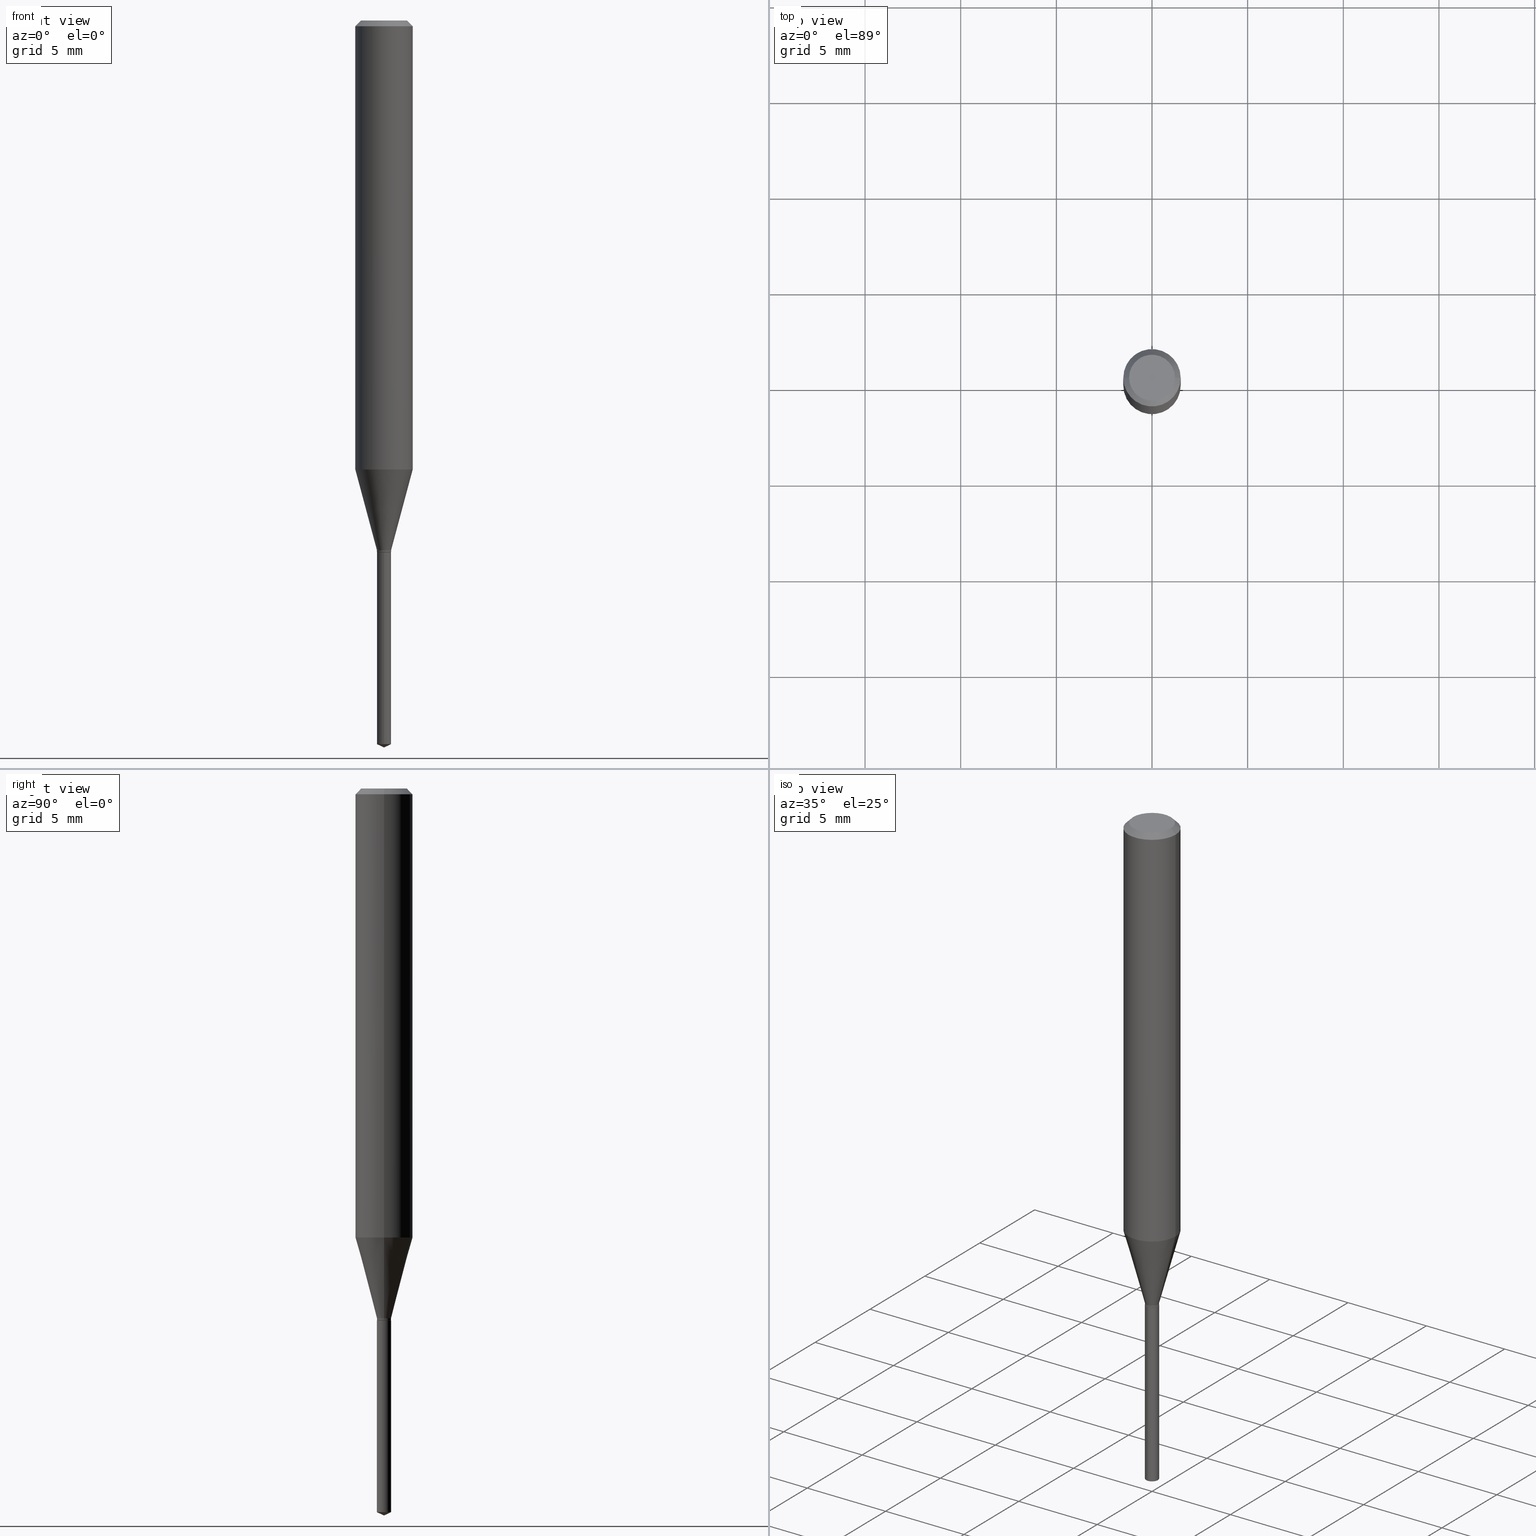
[diagram: canonical four-view strip — front | top / right | iso, engineering-drawing reading convention]
A machine part, canonical four-view strip (front | top / right | iso — engineering-drawing reading convention). The complete STEP part file that produces these views, byte-faithful:
ISO-10303-21;
HEADER;
FILE_DESCRIPTION (( 'STEP AP203' ),
    '1' );
FILE_NAME ('07793.STEP',
    '2024-04-24T03:09:29',
    ( '' ),
    ( '' ),
    'SwSTEP 2.0',
    'SolidWorks 2023',
    '' );
FILE_SCHEMA (( 'CONFIG_CONTROL_DESIGN' ));
ENDSEC;

DATA;
#1 = ADVANCED_FACE ( 'NONE', ( #323 ), #472, .F. ) ;
#2 = DIRECTION ( 'NONE',  ( -1.000000000000000000, 6.982962677686266711E-15, 0.000000000000000000 ) ) ;
#3 = CIRCLE ( 'NONE', #393, 0.01455000000000000043 ) ;
#4 = DIRECTION ( 'NONE',  ( 6.982962677686265922E-15, 1.000000000000000000, -3.491495526022433599E-15 ) ) ;
#5 = ORIENTED_EDGE ( 'NONE', *, *, #409, .T. ) ;
#6 = VERTEX_POINT ( 'NONE', #464 ) ;
#7 = EDGE_CURVE ( 'NONE', #430, #453, #425, .T. ) ;
#8 = CARTESIAN_POINT ( 'NONE',  ( 2.676565608369632355E-29, -3.821426325363822773E-15, -1.094500000000000028 ) ) ;
#9 = DIRECTION ( 'NONE',  ( 1.000000000000000000, -6.982962677686266711E-15, 4.876176775795935793E-29 ) ) ;
#10 = VECTOR ( 'NONE', #490, 39.37007874015748143 ) ;
#11 = ORIENTED_EDGE ( 'NONE', *, *, #477, .T. ) ;
#12 = EDGE_LOOP ( 'NONE', ( #406, #11, #112 ) ) ;
#13 = DIRECTION ( 'NONE',  ( 1.000000000000000000, -6.982962677686266711E-15, 4.876185090822587894E-29 ) ) ;
#14 = ORIENTED_EDGE ( 'NONE', *, *, #7, .F. ) ;
#15 = EDGE_CURVE ( 'NONE', #389, #305, #332, .T. ) ;
#16 = ORIENTED_EDGE ( 'NONE', *, *, #342, .F. ) ;
#17 = DIRECTION ( 'NONE',  ( -6.982962677686266711E-15, -1.000000000000000000, 0.000000000000000000 ) ) ;
#18 = CONICAL_SURFACE ( 'NONE', #249, 84.42940631927417883, 1.134464013796315118 ) ;
#19 = MECHANICAL_CONTEXT ( 'NONE', #63, 'mechanical' ) ;
#20 = ORIENTED_EDGE ( 'NONE', *, *, #282, .T. ) ;
#21 = ORIENTED_EDGE ( 'NONE', *, *, #226, .T. ) ;
#22 = CARTESIAN_POINT ( 'NONE',  ( 3.658672935554494692E-29, -5.223595400746700193E-15, -1.496099999999999985 ) ) ;
#23 = PRODUCT_DEFINITION_SHAPE ( 'NONE', 'NONE',  #172 ) ;
#24 = APPLICATION_PROTOCOL_DEFINITION ( 'international standard', 'config_control_design', 1994, #439 ) ;
#25 = EDGE_CURVE ( 'NONE', #367, #48, #450, .T. ) ;
#26 = DATE_TIME_ROLE ( 'creation_date' ) ;
#27 = EDGE_LOOP ( 'NONE', ( #43, #419, #128, #271 ) ) ;
#28 = DIRECTION ( 'NONE',  ( 1.000000000000000000, -6.982962677686268288E-15, 0.000000000000000000 ) ) ;
#29 = COORDINATED_UNIVERSAL_TIME_OFFSET ( 5, 0, .BEHIND. ) ;
#30 = ADVANCED_FACE ( 'NONE', ( #34 ), #460, .T. ) ;
#31 = APPROVAL_DATE_TIME ( #366, #85 ) ;
#32 = CIRCLE ( 'NONE', #413, 0.04724000000000000421 ) ;
#33 = DIRECTION ( 'NONE',  ( 1.000000000000000000, -6.982962677686255667E-15, 0.000000000000000000 ) ) ;
#34 = FACE_OUTER_BOUND ( 'NONE', #412, .T. ) ;
#35 = EDGE_CURVE ( 'NONE', #150, #178, #198, .T. ) ;
#36 = LINE ( 'NONE', #384, #155 ) ;
#37 = FACE_OUTER_BOUND ( 'NONE', #426, .T. ) ;
#38 = AXIS2_PLACEMENT_3D ( 'NONE', #119, #284, #17 ) ;
#39 = CARTESIAN_POINT ( 'NONE',  ( 0.000000000000000000, 0.000000000000000000, 0.000000000000000000 ) ) ;
#40 = CLOSED_SHELL ( 'NONE', ( #100, #233, #140, #103, #318, #219, #122, #484, #30, #1, #289, #153 ) ) ;
#41 = LOCAL_TIME ( 23, 9, 29.00000000000000000, #475 ) ;
#42 = ORIENTED_EDGE ( 'NONE', *, *, #376, .T. ) ;
#43 = ORIENTED_EDGE ( 'NONE', *, *, #72, .T. ) ;
#44 = ORIENTED_EDGE ( 'NONE', *, *, #310, .T. ) ;
#45 = ORIENTED_EDGE ( 'NONE', *, *, #324, .F. ) ;
#46 = FACE_OUTER_BOUND ( 'NONE', #435, .T. ) ;
#47 = CALENDAR_DATE ( 2024, 23, 4 ) ;
#48 = VERTEX_POINT ( 'NONE', #58 ) ;
#49 = EDGE_LOOP ( 'NONE', ( #396, #165, #360, #81 ) ) ;
#50 = CIRCLE ( 'NONE', #487, 0.01455000000000000043 ) ;
#51 = APPROVAL_PERSON_ORGANIZATION ( #131, #85, #159 ) ;
#52 = DIRECTION ( 'NONE',  ( 6.439704144417027198E-15, 0.9063077870366517130, 0.4226182617406953890 ) ) ;
#53 = DIRECTION ( 'NONE',  ( -2.445468806185136597E-29, 3.491481338843145583E-15, 1.000000000000000000 ) ) ;
#54 = CC_DESIGN_PERSON_AND_ORGANIZATION_ASSIGNMENT ( #202, #479, ( #149 ) ) ;
#55 = DATE_AND_TIME ( #252, #41 ) ;
#56 = DIRECTION ( 'NONE',  ( -6.982962677686266711E-15, -1.000000000000000000, 0.000000000000000000 ) ) ;
#57 = EDGE_LOOP ( 'NONE', ( #44, #465 ) ) ;
#58 = CARTESIAN_POINT ( 'NONE',  ( 0.05904999999999999832, -4.535783407291118600E-16, -0.01181000000000007218 ) ) ;
#59 = DATE_TIME_ROLE ( 'classification_date' ) ;
#60 = AXIS2_PLACEMENT_3D ( 'NONE', #77, #237, #139 ) ;
#61 = CYLINDRICAL_SURFACE ( 'NONE', #314, 0.01455000000000000043 ) ;
#62 = UNCERTAINTY_MEASURE_WITH_UNIT (LENGTH_MEASURE( 1.000000000000000082E-05 ), #469, 'distance_accuracy_value', 'NONE');
#63 = APPLICATION_CONTEXT ( 'configuration controlled 3d designs of mechanical parts and assemblies' ) ;
#64 = CARTESIAN_POINT ( 'NONE',  ( 2.676565608369631794E-29, -3.821426325363822773E-15, -1.094499999999999806 ) ) ;
#65 = CARTESIAN_POINT ( 'NONE',  ( 0.01455000000000000043, -3.921282691654735933E-15, -1.093999999999999861 ) ) ;
#66 = DIRECTION ( 'NONE',  ( -6.982962677686266711E-15, -1.000000000000000000, 0.000000000000000000 ) ) ;
#67 = DIRECTION ( 'NONE',  ( 0.7071067811865453523, -7.319954787623248157E-15, -0.7071067811865496822 ) ) ;
#68 = APPROVAL_DATE_TIME ( #368, #461 ) ;
#69 = CC_DESIGN_PERSON_AND_ORGANIZATION_ASSIGNMENT ( #441, #369, ( #172 ) ) ;
#70 = CARTESIAN_POINT ( 'NONE',  ( 2.888098660104664204E-31, -4.123439461173780263E-17, -0.01181000000000007218 ) ) ;
#71 = ORIENTED_EDGE ( 'NONE', *, *, #282, .F. ) ;
#72 = EDGE_CURVE ( 'NONE', #397, #178, #372, .T. ) ;
#73 = CIRCLE ( 'NONE', #118, 0.01405000000000000172 ) ;
#74 = CONICAL_SURFACE ( 'NONE', #379, 84.42940631927417883, 1.134464013796315118 ) ;
#75 = ORIENTED_EDGE ( 'NONE', *, *, #72, .F. ) ;
#76 = EDGE_LOOP ( 'NONE', ( #321, #325, #481, #470 ) ) ;
#77 = CARTESIAN_POINT ( 'NONE',  ( 3.642070010449566093E-29, -5.199921912077447787E-15, -1.489315223573844715 ) ) ;
#78 = EDGE_CURVE ( 'NONE', #48, #186, #125, .T. ) ;
#79 = LINE ( 'NONE', #431, #88 ) ;
#80 = ORIENTED_EDGE ( 'NONE', *, *, #251, .T. ) ;
#81 = ORIENTED_EDGE ( 'NONE', *, *, #15, .F. ) ;
#82 = DIRECTION ( 'NONE',  ( 1.000000000000000000, -6.982962677686253300E-15, 0.000000000000000000 ) ) ;
#83 = CARTESIAN_POINT ( 'NONE',  ( -9.261924752013118283E-28, 1.322368428517963298E-13, 37.87397874015748300 ) ) ;
#84 = DIRECTION ( 'NONE',  ( 1.000000000000000000, -6.982962677686266711E-15, 4.876176775795935793E-29 ) ) ;
#85 = APPROVAL ( #242, 'UNSPECIFIED' ) ;
#86 = APPROVAL_ROLE ( '' ) ;
#87 = PRODUCT ( '07793', '07793', '', ( #19 ) ) ;
#88 = VECTOR ( 'NONE', #291, 39.37007874015748143 ) ;
#89 = EDGE_LOOP ( 'NONE', ( #16, #231, #145, #361 ) ) ;
#90 = AXIS2_PLACEMENT_3D ( 'NONE', #210, #485, #299 ) ;
#91 = CARTESIAN_POINT ( 'NONE',  ( 1.033839680531310403E-16, 0.01454999999999480494, -1.489315223573844715 ) ) ;
#92 = PLANE ( 'NONE',  #319 ) ;
#93 = DIRECTION ( 'NONE',  ( 1.000000000000000000, -6.982962677686255667E-15, 0.000000000000000000 ) ) ;
#94 = DATE_AND_TIME ( #432, #447 ) ;
#95 = DIRECTION ( 'NONE',  ( 2.438088387897960049E-29, -3.491481338843145188E-15, -1.000000000000000000 ) ) ;
#96 = MANIFOLD_SOLID_BREP ( 'Body-Move/Copy2[1]', #352 ) ;
#97 = ORIENTED_EDGE ( 'NONE', *, *, #35, .T. ) ;
#98 = CARTESIAN_POINT ( 'NONE',  ( -0.01455000000000000043, -3.709488228030561988E-15, -1.093999999999999861 ) ) ;
#99 = SECURITY_CLASSIFICATION_LEVEL ( 'unclassified' ) ;
#100 = ADVANCED_FACE ( 'NONE', ( #220 ), #106, .T. ) ;
#101 = FACE_OUTER_BOUND ( 'NONE', #358, .T. ) ;
#102 = DIRECTION ( 'NONE',  ( -0.7071067811864253372, 7.493145998869912398E-15, 0.7071067811866698083 ) ) ;
#103 = ADVANCED_FACE ( 'NONE', ( #227 ), #127, .T. ) ;
#104 = CARTESIAN_POINT ( 'NONE',  ( 0.000000000000000000, 0.000000000000000000, 0.000000000000000000 ) ) ;
#105 = DIRECTION ( 'NONE',  ( 1.000000000000000000, -6.982962677686266711E-15, 0.000000000000000000 ) ) ;
#106 = CONICAL_SURFACE ( 'NONE', #143, 0.01405000000000000172, 0.7853981633972754173 ) ;
#107 = DIRECTION ( 'NONE',  ( -2.445468806185136597E-29, 3.491481338843145583E-15, 1.000000000000000000 ) ) ;
#108 = EDGE_CURVE ( 'NONE', #285, #389, #3, .T. ) ;
#109 = VECTOR ( 'NONE', #416, 39.37007874015748854 ) ;
#110 = CC_DESIGN_APPROVAL ( #461, ( #215 ) ) ;
#111 = CARTESIAN_POINT ( 'NONE',  ( 8.265746106709734507E-48, -1.180129479067563789E-33, -3.380025165646692144E-19 ) ) ;
#112 = ORIENTED_EDGE ( 'NONE', *, *, #257, .F. ) ;
#113 = CARTESIAN_POINT ( 'NONE',  ( -0.05905000000000010241, -2.806636156120838510E-15, -0.9240237390631849124 ) ) ;
#114 = DIRECTION ( 'NONE',  ( -2.445468806185136597E-29, 3.491481338843145583E-15, 1.000000000000000000 ) ) ;
#115 = CC_DESIGN_PERSON_AND_ORGANIZATION_ASSIGNMENT ( #400, #292, ( #149 ) ) ;
#116 = CARTESIAN_POINT ( 'NONE',  ( -1.016021069603084089E-16, -0.01455000000000382203, -1.094499999999999806 ) ) ;
#117 = ORIENTED_EDGE ( 'NONE', *, *, #108, .T. ) ;
#118 = AXIS2_PLACEMENT_3D ( 'NONE', #8, #458, #82 ) ;
#119 = CARTESIAN_POINT ( 'NONE',  ( 2.676565608369631794E-29, -3.821426325363822773E-15, -1.094499999999999806 ) ) ;
#120 = DIRECTION ( 'NONE',  ( -6.982962677686266711E-15, -1.000000000000000000, 3.520397390770460575E-15 ) ) ;
#121 = CARTESIAN_POINT ( 'NONE',  ( 0.000000000000000000, 0.000000000000000000, 0.000000000000000000 ) ) ;
#122 = ADVANCED_FACE ( 'NONE', ( #245 ), #364, .T. ) ;
#123 =( LENGTH_UNIT ( ) NAMED_UNIT ( * ) SI_UNIT ( $, .METRE. ) );
#124 = ORIENTED_EDGE ( 'NONE', *, *, #454, .T. ) ;
#125 = CIRCLE ( 'NONE', #162, 0.05904999999999999832 ) ;
#126 = VERTEX_POINT ( 'NONE', #320 ) ;
#127 = CONICAL_SURFACE ( 'NONE', #427, 0.01455000000000000043, 0.2617993877991499629 ) ;
#128 = ORIENTED_EDGE ( 'NONE', *, *, #411, .F. ) ;
#129 = LOCAL_TIME ( 23, 9, 29.00000000000000000, #157 ) ;
#130 = DIRECTION ( 'NONE',  ( -2.445468806185136597E-29, 3.491481338843145583E-15, 1.000000000000000000 ) ) ;
#131 = PERSON_AND_ORGANIZATION ( #218, #394 ) ;
#132 = ORIENTED_EDGE ( 'NONE', *, *, #78, .F. ) ;
#133 = DIRECTION ( 'NONE',  ( -2.438088387897960049E-29, 3.491481338843145188E-15, 1.000000000000000000 ) ) ;
#134 = CYLINDRICAL_SURFACE ( 'NONE', #38, 0.01455000000000000043 ) ;
#135 = LENGTH_MEASURE_WITH_UNIT ( LENGTH_MEASURE( 0.02539999999999999897 ), #123 );
#136 = DIRECTION ( 'NONE',  ( 1.000000000000000000, -6.982962677686266711E-15, 4.876176775795935793E-29 ) ) ;
#137 = CIRCLE ( 'NONE', #345, 0.01405000000000000172 ) ;
#138 = DIRECTION ( 'NONE',  ( -2.445458899330790108E-29, 3.491495526022433205E-15, 1.000000000000000000 ) ) ;
#139 = DIRECTION ( 'NONE',  ( -6.982962677686266711E-15, -1.000000000000000000, 0.000000000000000000 ) ) ;
#140 = ADVANCED_FACE ( 'NONE', ( #200 ), #488, .T. ) ;
#141 = LINE ( 'NONE', #156, #478 ) ;
#142 = DIRECTION ( 'NONE',  ( 1.000000000000000000, -6.982962677686253300E-15, 0.000000000000000000 ) ) ;
#143 = AXIS2_PLACEMENT_3D ( 'NONE', #147, #195, #363 ) ;
#144 = CARTESIAN_POINT ( 'NONE',  ( 2.259671230053572766E-29, -3.226211641587178003E-15, -0.9240237390631849124 ) ) ;
#145 = ORIENTED_EDGE ( 'NONE', *, *, #269, .T. ) ;
#146 = ORIENTED_EDGE ( 'NONE', *, *, #226, .F. ) ;
#147 = CARTESIAN_POINT ( 'NONE',  ( 2.676565608369632355E-29, -3.821426325363822773E-15, -1.094500000000000028 ) ) ;
#148 = AXIS2_PLACEMENT_3D ( 'NONE', #351, #234, #391 ) ;
#149 = PRODUCT_DEFINITION_FORMATION_WITH_SPECIFIED_SOURCE ( 'ANY', '', #87, .NOT_KNOWN. ) ;
#150 = VERTEX_POINT ( 'NONE', #392 ) ;
#151 = CC_DESIGN_DATE_AND_TIME_ASSIGNMENT ( #94, #26, ( #172 ) ) ;
#152 = ORIENTED_EDGE ( 'NONE', *, *, #365, .T. ) ;
#153 = ADVANCED_FACE ( 'NONE', ( #424 ), #256, .T. ) ;
#154 = CIRCLE ( 'NONE', #402, 0.05905000000000010241 ) ;
#155 = VECTOR ( 'NONE', #102, 39.37007874015748143 ) ;
#156 = CARTESIAN_POINT ( 'NONE',  ( 3.658651059288795076E-29, -5.223626456482161457E-15, -1.496099999999999985 ) ) ;
#157 = COORDINATED_UNIVERSAL_TIME_OFFSET ( 5, 0, .BEHIND. ) ;
#158 = EDGE_LOOP ( 'NONE', ( #20, #315, #132, #268 ) ) ;
#159 = APPROVAL_ROLE ( '' ) ;
#160 = DIRECTION ( 'NONE',  ( -2.445458899330790108E-29, 3.491495526022433205E-15, 1.000000000000000000 ) ) ;
#161 = APPROVAL_DATE_TIME ( #55, #209 ) ;
#162 = AXIS2_PLACEMENT_3D ( 'NONE', #443, #107, #105 ) ;
#163 = DIRECTION ( 'NONE',  ( 1.000000000000000000, -6.982962677686255667E-15, 0.000000000000000000 ) ) ;
#164 = CIRCLE ( 'NONE', #270, 0.01455000000000000043 ) ;
#165 = ORIENTED_EDGE ( 'NONE', *, *, #383, .T. ) ;
#166 = APPROVAL_PERSON_ORGANIZATION ( #444, #209, #471 ) ;
#167 = CARTESIAN_POINT ( 'NONE',  ( -4.753723245638138964E-29, -1.446202287008103114E-14, -1.094500000000000028 ) ) ;
#168 = EDGE_CURVE ( 'NONE', #126, #395, #73, .T. ) ;
#169 =( NAMED_UNIT ( * ) SI_UNIT ( $, .STERADIAN. ) SOLID_ANGLE_UNIT ( ) );
#170 = DIRECTION ( 'NONE',  ( 0.2588190451025212391, 1.565188264969622362E-15, 0.9659258262890679791 ) ) ;
#171 = PERSON_AND_ORGANIZATION_ROLE ( 'classification_officer' ) ;
#172 = PRODUCT_DEFINITION ( 'UNKNOWN', '', #149, #176 ) ;
#173 = AXIS2_PLACEMENT_3D ( 'NONE', #482, #250, #56 ) ;
#174 = AXIS2_PLACEMENT_3D ( 'NONE', #417, #183, #385 ) ;
#175 = SHAPE_DEFINITION_REPRESENTATION ( #23, #486 ) ;
#176 = DESIGN_CONTEXT ( 'detailed design', #439, 'design' ) ;
#177 = CARTESIAN_POINT ( 'NONE',  ( 2.676565608369631794E-29, -3.821426325363822773E-15, -1.094499999999999806 ) ) ;
#178 = VERTEX_POINT ( 'NONE', #91 ) ;
#179 = VECTOR ( 'NONE', #386, 39.37007874015748143 ) ;
#180 = VECTOR ( 'NONE', #204, 39.37007874015748143 ) ;
#181 = DIRECTION ( 'NONE',  ( -2.445468806185136597E-29, 3.491481338843145583E-15, 1.000000000000000000 ) ) ;
#182 = EDGE_CURVE ( 'NONE', #367, #356, #32, .T. ) ;
#183 = DIRECTION ( 'NONE',  ( -2.445468806185136597E-29, 3.491481338843145583E-15, 1.000000000000000000 ) ) ;
#184 = DIRECTION ( 'NONE',  ( -2.445458899330790108E-29, 3.491495526022433205E-15, 1.000000000000000000 ) ) ;
#185 = LINE ( 'NONE', #480, #192 ) ;
#186 = VERTEX_POINT ( 'NONE', #278 ) ;
#187 = DIRECTION ( 'NONE',  ( -2.445468806185136597E-29, 3.491481338843145583E-15, 1.000000000000000000 ) ) ;
#188 = CARTESIAN_POINT ( 'NONE',  ( 0.04724000000000000421, -3.852183633974369345E-16, -3.380025165621689721E-19 ) ) ;
#189 = ADVANCED_FACE ( 'NONE', ( #37 ), #338, .F. ) ;
#190 = ORIENTED_EDGE ( 'NONE', *, *, #168, .T. ) ;
#191 = CIRCLE ( 'NONE', #60, 0.01455000000000000043 ) ;
#192 = VECTOR ( 'NONE', #407, 39.37007874015748143 ) ;
#193 = ORIENTED_EDGE ( 'NONE', *, *, #15, .T. ) ;
#194 = ORIENTED_EDGE ( 'NONE', *, *, #196, .F. ) ;
#195 = DIRECTION ( 'NONE',  ( -2.445468806185136597E-29, 3.491481338843145583E-15, 1.000000000000000000 ) ) ;
#196 = EDGE_CURVE ( 'NONE', #453, #6, #154, .T. ) ;
#197 = ORIENTED_EDGE ( 'NONE', *, *, #251, .F. ) ;
#198 = LINE ( 'NONE', #22, #243 ) ;
#199 = EDGE_LOOP ( 'NONE', ( #14, #80, #21, #194 ) ) ;
#200 = FACE_OUTER_BOUND ( 'NONE', #158, .T. ) ;
#201 = AXIS2_PLACEMENT_3D ( 'NONE', #355, #114, #275 ) ;
#202 = PERSON_AND_ORGANIZATION ( #218, #394 ) ;
#203 = CYLINDRICAL_SURFACE ( 'NONE', #354, 0.05905000000000005383 ) ;
#204 = DIRECTION ( 'NONE',  ( -2.445458899330790108E-29, 3.491495526022433599E-15, 1.000000000000000000 ) ) ;
#205 = FACE_OUTER_BOUND ( 'NONE', #346, .T. ) ;
#206 = APPLICATION_PROTOCOL_DEFINITION ( 'international standard', 'config_control_design', 1994, #63 ) ;
#207 = EDGE_LOOP ( 'NONE', ( #288, #405, #152, #241 ) ) ;
#208 = PERSON_AND_ORGANIZATION ( #218, #394 ) ;
#209 = APPROVAL ( #328, 'UNSPECIFIED' ) ;
#210 = CARTESIAN_POINT ( 'NONE',  ( 2.259671230053572766E-29, -3.226211641587178003E-15, -0.9240237390631849124 ) ) ;
#211 = DIRECTION ( 'NONE',  ( -2.445468806185136597E-29, 3.491481338843145583E-15, 1.000000000000000000 ) ) ;
#212 = DIRECTION ( 'NONE',  ( 1.000000000000000000, 0.000000000000000000, 0.000000000000000000 ) ) ;
#213 = CARTESIAN_POINT ( 'NONE',  ( -0.01455000000000000043, -3.702679839419818518E-15, -1.090099999999999847 ) ) ;
#214 = AXIS2_PLACEMENT_3D ( 'NONE', #177, #344, #4 ) ;
#215 = SECURITY_CLASSIFICATION ( '', '', #99 ) ;
#216 = CARTESIAN_POINT ( 'NONE',  ( 1.033839680531310526E-16, 0.01454999999999617884, -1.094499999999999806 ) ) ;
#217 =( NAMED_UNIT ( * ) PLANE_ANGLE_UNIT ( ) SI_UNIT ( $, .RADIAN. ) );
#218 = PERSON ( 'UNSPECIFIED', 'UNSPECIFIED', 'UNSPECIFIED', ('UNSPECIFIED'), ('UNSPECIFIED'), ('UNSPECIFIED') ) ;
#219 = ADVANCED_FACE ( 'NONE', ( #205 ), #61, .T. ) ;
#220 = FACE_OUTER_BOUND ( 'NONE', #311, .T. ) ;
#221 = ORIENTED_EDGE ( 'NONE', *, *, #295, .T. ) ;
#222 = VECTOR ( 'NONE', #170, 39.37007874015748854 ) ;
#223 = CC_DESIGN_APPROVAL ( #85, ( #172 ) ) ;
#224 = ORIENTED_EDGE ( 'NONE', *, *, #383, .F. ) ;
#225 = CARTESIAN_POINT ( 'NONE',  ( 0.01455000000000000043, -1.016021069603351808E-16, 7.094837208783087188E-31 ) ) ;
#226 = EDGE_CURVE ( 'NONE', #305, #6, #377, .T. ) ;
#227 = FACE_OUTER_BOUND ( 'NONE', #267, .T. ) ;
#228 = AXIS2_PLACEMENT_3D ( 'NONE', #302, #382, #350 ) ;
#229 = CARTESIAN_POINT ( 'NONE',  ( 0.05904999999999999832, -4.463468013801466955E-16, -0.01181000000000007218 ) ) ;
#230 = AXIS2_PLACEMENT_3D ( 'NONE', #390, #138, #300 ) ;
#231 = ORIENTED_EDGE ( 'NONE', *, *, #196, .T. ) ;
#232 = DIRECTION ( 'NONE',  ( -6.982962677686266711E-15, -1.000000000000000000, 0.000000000000000000 ) ) ;
#233 = ADVANCED_FACE ( 'NONE', ( #335 ), #353, .T. ) ;
#234 = DIRECTION ( 'NONE',  ( -2.445468806185136597E-29, 3.491481338843145583E-15, 1.000000000000000000 ) ) ;
#235 = DIRECTION ( 'NONE',  ( -2.445468806185136597E-29, 3.491481338843145583E-15, 1.000000000000000000 ) ) ;
#236 = CARTESIAN_POINT ( 'NONE',  ( 2.665805545622417047E-29, -3.806063807472912753E-15, -1.090099999999999847 ) ) ;
#237 = DIRECTION ( 'NONE',  ( -2.445458899330790108E-29, 3.491495526022433205E-15, 1.000000000000000000 ) ) ;
#238 = CIRCLE ( 'NONE', #90, 0.05905000000000010241 ) ;
#239 = AXIS2_PLACEMENT_3D ( 'NONE', #121, #290, #212 ) ;
#240 = ORIENTED_EDGE ( 'NONE', *, *, #264, .F. ) ;
#241 = ORIENTED_EDGE ( 'NONE', *, *, #108, .F. ) ;
#242 = APPROVAL_STATUS ( 'not_yet_approved' ) ;
#243 = VECTOR ( 'NONE', #52, 39.37007874015748143 ) ;
#244 = AXIS2_PLACEMENT_3D ( 'NONE', #70, #381, #2 ) ;
#245 = FACE_OUTER_BOUND ( 'NONE', #199, .T. ) ;
#246 = AXIS2_PLACEMENT_3D ( 'NONE', #330, #130, #373 ) ;
#247 = COORDINATED_UNIVERSAL_TIME_OFFSET ( 5, 0, .BEHIND. ) ;
#248 = CARTESIAN_POINT ( 'NONE',  ( 4.132873053354867254E-48, -5.900647395337818946E-34, -1.690012582823346072E-19 ) ) ;
#249 = AXIS2_PLACEMENT_3D ( 'NONE', #83, #462, #359 ) ;
#250 = DIRECTION ( 'NONE',  ( -2.445458899330790108E-29, 3.491495526022433205E-15, 1.000000000000000000 ) ) ;
#251 = EDGE_CURVE ( 'NONE', #430, #305, #50, .T. ) ;
#252 = CALENDAR_DATE ( 2024, 23, 4 ) ;
#253 = ORIENTED_EDGE ( 'NONE', *, *, #168, .F. ) ;
#254 = LINE ( 'NONE', #116, #476 ) ;
#255 = DATE_AND_TIME ( #408, #129 ) ;
#256 = CONICAL_SURFACE ( 'NONE', #228, 0.01405000000000000172, 0.7853981633972754173 ) ;
#257 = EDGE_CURVE ( 'NONE', #178, #397, #191, .T. ) ;
#258 = CARTESIAN_POINT ( 'NONE',  ( 2.665805545622417047E-29, -3.806063807472912753E-15, -1.090099999999999847 ) ) ;
#259 = FACE_OUTER_BOUND ( 'NONE', #459, .T. ) ;
#260 = AXIS2_PLACEMENT_3D ( 'NONE', #104, #304, #9 ) ;
#261 = CC_DESIGN_SECURITY_CLASSIFICATION ( #215, ( #149 ) ) ;
#262 = DIRECTION ( 'NONE',  ( -2.445458899330790108E-29, 3.491495526022433205E-15, 1.000000000000000000 ) ) ;
#263 = CARTESIAN_POINT ( 'NONE',  ( 2.676565608369632355E-29, -3.821426325363822773E-15, -1.094500000000000028 ) ) ;
#264 = EDGE_CURVE ( 'NONE', #178, #293, #301, .T. ) ;
#265 = MANIFOLD_SOLID_BREP ( 'Body-Move/Copy2[2]', #40 ) ;
#266 = LINE ( 'NONE', #312, #10 ) ;
#267 = EDGE_LOOP ( 'NONE', ( #42, #348, #71, #146 ) ) ;
#268 = ORIENTED_EDGE ( 'NONE', *, *, #269, .F. ) ;
#269 = EDGE_CURVE ( 'NONE', #6, #48, #279, .T. ) ;
#270 = AXIS2_PLACEMENT_3D ( 'NONE', #276, #184, #66 ) ;
#271 = ORIENTED_EDGE ( 'NONE', *, *, #295, .F. ) ;
#272 = DIRECTION ( 'NONE',  ( -2.445468806185136597E-29, 3.491481338843145583E-15, 1.000000000000000000 ) ) ;
#273 = DIRECTION ( 'NONE',  ( -2.445468806185136597E-29, 3.491481338843145583E-15, 1.000000000000000000 ) ) ;
#274 = DIRECTION ( 'NONE',  ( -2.445468806185136597E-29, 3.491481338843145583E-15, 1.000000000000000000 ) ) ;
#275 = DIRECTION ( 'NONE',  ( 1.000000000000000000, -6.982962677686255667E-15, 0.000000000000000000 ) ) ;
#276 = CARTESIAN_POINT ( 'NONE',  ( 2.676565608369631794E-29, -3.821426325363822773E-15, -1.094499999999999806 ) ) ;
#277 = ORIENTED_EDGE ( 'NONE', *, *, #25, .F. ) ;
#278 = CARTESIAN_POINT ( 'NONE',  ( -0.05904999999999999832, -1.214147532633117781E-15, -0.01181000000000007218 ) ) ;
#279 = LINE ( 'NONE', #433, #339 ) ;
#280 = CYLINDRICAL_SURFACE ( 'NONE', #298, 0.01455000000000000043 ) ;
#281 = AXIS2_PLACEMENT_3D ( 'NONE', #483, #296, #446 ) ;
#282 = EDGE_CURVE ( 'NONE', #6, #453, #238, .T. ) ;
#283 = VERTEX_POINT ( 'NONE', #371 ) ;
#284 = DIRECTION ( 'NONE',  ( -2.445458899330790108E-29, 3.491495526022433205E-15, 1.000000000000000000 ) ) ;
#285 = VERTEX_POINT ( 'NONE', #98 ) ;
#286 = CARTESIAN_POINT ( 'NONE',  ( 0.000000000000000000, 0.000000000000000000, 0.000000000000000000 ) ) ;
#287 = APPROVAL_STATUS ( 'not_yet_approved' ) ;
#288 = ORIENTED_EDGE ( 'NONE', *, *, #409, .F. ) ;
#289 = ADVANCED_FACE ( 'NONE', ( #259 ), #92, .F. ) ;
#290 = DIRECTION ( 'NONE',  ( 0.000000000000000000, 0.000000000000000000, 1.000000000000000000 ) ) ;
#291 = DIRECTION ( 'NONE',  ( 0.7071067811864253372, -2.468850131080976739E-15, 0.7071067811866698083 ) ) ;
#292 = PERSON_AND_ORGANIZATION_ROLE ( 'design_supplier' ) ;
#293 = VERTEX_POINT ( 'NONE', #216 ) ;
#294 = DIRECTION ( 'NONE',  ( 1.000000000000000000, -6.982962677686265922E-15, 4.876176775795935793E-29 ) ) ;
#295 = EDGE_CURVE ( 'NONE', #397, #283, #254, .T. ) ;
#296 = DIRECTION ( 'NONE',  ( 2.445468806185136597E-29, -3.491481338843145583E-15, -1.000000000000000000 ) ) ;
#297 = AXIS2_PLACEMENT_3D ( 'NONE', #111, #235, #421 ) ;
#298 = AXIS2_PLACEMENT_3D ( 'NONE', #64, #262, #232 ) ;
#299 = DIRECTION ( 'NONE',  ( 1.000000000000000000, -6.982962677686268288E-15, 0.000000000000000000 ) ) ;
#300 = DIRECTION ( 'NONE',  ( -6.982962677686266711E-15, -1.000000000000000000, 0.000000000000000000 ) ) ;
#301 = LINE ( 'NONE', #437, #180 ) ;
#302 = CARTESIAN_POINT ( 'NONE',  ( 2.676565608369632355E-29, -3.821426325363822773E-15, -1.094500000000000028 ) ) ;
#303 = DIRECTION ( 'NONE',  ( -2.445468806185136877E-29, 3.491481338843145188E-15, 1.000000000000000000 ) ) ;
#304 = DIRECTION ( 'NONE',  ( -2.445468806185136597E-29, 3.491481338843145583E-15, 1.000000000000000000 ) ) ;
#305 = VERTEX_POINT ( 'NONE', #317 ) ;
#306 = LINE ( 'NONE', #415, #451 ) ;
#307 = EDGE_CURVE ( 'NONE', #293, #283, #164, .T. ) ;
#308 = FACE_OUTER_BOUND ( 'NONE', #49, .T. ) ;
#309 = ORIENTED_EDGE ( 'NONE', *, *, #411, .T. ) ;
#310 = EDGE_CURVE ( 'NONE', #356, #367, #410, .T. ) ;
#311 = EDGE_LOOP ( 'NONE', ( #190, #5, #473, #380 ) ) ;
#312 = CARTESIAN_POINT ( 'NONE',  ( -0.01455000000000000043, 1.033839680530945801E-16, -7.157050556320887847E-31 ) ) ;
#313 = CIRCLE ( 'NONE', #468, 0.05904999999999999832 ) ;
#314 = AXIS2_PLACEMENT_3D ( 'NONE', #286, #327, #136 ) ;
#315 = ORIENTED_EDGE ( 'NONE', *, *, #342, .T. ) ;
#316 = CARTESIAN_POINT ( 'NONE',  ( 8.265746106709734507E-48, -1.180129479067563789E-33, -3.380025165646692144E-19 ) ) ;
#317 = CARTESIAN_POINT ( 'NONE',  ( 0.01455000000000000043, -3.907665914433247416E-15, -1.090099999999999847 ) ) ;
#318 = ADVANCED_FACE ( 'NONE', ( #308 ), #456, .T. ) ;
#319 = AXIS2_PLACEMENT_3D ( 'NONE', #167, #133, #294 ) ;
#320 = CARTESIAN_POINT ( 'NONE',  ( 0.01405000000000000172, -3.919536950985315218E-15, -1.094500000000000028 ) ) ;
#321 = ORIENTED_EDGE ( 'NONE', *, *, #182, .F. ) ;
#322 = PERSON_AND_ORGANIZATION ( #218, #394 ) ;
#323 = FACE_OUTER_BOUND ( 'NONE', #57, .T. ) ;
#324 = EDGE_CURVE ( 'NONE', #395, #126, #137, .T. ) ;
#325 = ORIENTED_EDGE ( 'NONE', *, *, #25, .T. ) ;
#326 = DIRECTION ( 'NONE',  ( 1.000000000000000000, -6.982962677686266711E-15, 0.000000000000000000 ) ) ;
#327 = DIRECTION ( 'NONE',  ( -2.445468806185136597E-29, 3.491481338843145583E-15, 1.000000000000000000 ) ) ;
#328 = APPROVAL_STATUS ( 'not_yet_approved' ) ;
#329 = DIRECTION ( 'NONE',  ( -2.445468806185136597E-29, 3.491481338843145583E-15, 1.000000000000000000 ) ) ;
#330 = CARTESIAN_POINT ( 'NONE',  ( 2.665805545622417047E-29, -3.806063807472912753E-15, -1.090099999999999847 ) ) ;
#331 = LOCAL_TIME ( 23, 9, 29.00000000000000000, #247 ) ;
#332 = LINE ( 'NONE', #225, #179 ) ;
#333 = ORIENTED_EDGE ( 'NONE', *, *, #477, .F. ) ;
#334 = CC_DESIGN_PERSON_AND_ORGANIZATION_ASSIGNMENT ( #322, #171, ( #215 ) ) ;
#335 = FACE_OUTER_BOUND ( 'NONE', #76, .T. ) ;
#336 = CARTESIAN_POINT ( 'NONE',  ( -0.01455000000000000043, -3.709488228030561988E-15, -1.090099999999999847 ) ) ;
#337 = AXIS2_PLACEMENT_3D ( 'NONE', #248, #95, #370 ) ;
#338 = PLANE ( 'NONE',  #214 ) ;
#339 = VECTOR ( 'NONE', #303, 39.37007874015748143 ) ;
#340 = CC_DESIGN_APPROVAL ( #209, ( #149 ) ) ;
#341 = FACE_OUTER_BOUND ( 'NONE', #89, .T. ) ;
#342 = EDGE_CURVE ( 'NONE', #453, #186, #306, .T. ) ;
#343 = CARTESIAN_POINT ( 'NONE',  ( -0.01405000000000000172, -3.718945843815417447E-15, -1.094500000000000028 ) ) ;
#344 = DIRECTION ( 'NONE',  ( 2.445458899330789267E-29, -3.491495526022433599E-15, -1.000000000000000000 ) ) ;
#345 = AXIS2_PLACEMENT_3D ( 'NONE', #263, #181, #142 ) ;
#346 = EDGE_LOOP ( 'NONE', ( #224, #117, #193, #197 ) ) ;
#347 = ADVANCED_FACE ( 'NONE', ( #101 ), #134, .T. ) ;
#348 = ORIENTED_EDGE ( 'NONE', *, *, #7, .T. ) ;
#349 = CARTESIAN_POINT ( 'NONE',  ( 2.888098660104664204E-31, -4.123439461173780263E-17, -0.01181000000000007218 ) ) ;
#350 = DIRECTION ( 'NONE',  ( 1.000000000000000000, -6.982962677686253300E-15, 0.000000000000000000 ) ) ;
#351 = CARTESIAN_POINT ( 'NONE',  ( 2.665805545622417047E-29, -3.806063807472912753E-15, -1.090099999999999847 ) ) ;
#352 = CLOSED_SHELL ( 'NONE', ( #399, #448, #440, #347, #189 ) ) ;
#353 = CONICAL_SURFACE ( 'NONE', #281, 0.05904999999999999832, 0.7853981633974452814 ) ;
#354 = AXIS2_PLACEMENT_3D ( 'NONE', #39, #273, #84 ) ;
#355 = CARTESIAN_POINT ( 'NONE',  ( 2.675342873966538993E-29, -3.819680584694400481E-15, -1.093999999999999861 ) ) ;
#356 = VERTEX_POINT ( 'NONE', #362 ) ;
#357 = EDGE_CURVE ( 'NONE', #186, #48, #313, .T. ) ;
#358 = EDGE_LOOP ( 'NONE', ( #240, #442, #221, #422 ) ) ;
#359 = DIRECTION ( 'NONE',  ( -6.982962677686266711E-15, -1.000000000000000000, 3.520397390770460575E-15 ) ) ;
#360 = ORIENTED_EDGE ( 'NONE', *, *, #376, .F. ) ;
#361 = ORIENTED_EDGE ( 'NONE', *, *, #357, .F. ) ;
#362 = CARTESIAN_POINT ( 'NONE',  ( -0.04724000000000000421, 3.504923541997677355E-16, -3.380025165670481712E-19 ) ) ;
#363 = DIRECTION ( 'NONE',  ( 1.000000000000000000, -6.982962677686253300E-15, 0.000000000000000000 ) ) ;
#364 = CONICAL_SURFACE ( 'NONE', #246, 0.01455000000000000043, 0.2617993877991499629 ) ;
#365 = EDGE_CURVE ( 'NONE', #126, #389, #79, .T. ) ;
#366 = DATE_AND_TIME ( #47, #388 ) ;
#367 = VERTEX_POINT ( 'NONE', #188 ) ;
#368 = DATE_AND_TIME ( #404, #331 ) ;
#369 = PERSON_AND_ORGANIZATION_ROLE ( 'creator' ) ;
#370 = DIRECTION ( 'NONE',  ( -1.000000000000000000, 6.982962677686265922E-15, -4.876176775795935793E-29 ) ) ;
#371 = CARTESIAN_POINT ( 'NONE',  ( -1.016021069603084089E-16, -0.01455000000000382203, -1.094499999999999806 ) ) ;
#372 = CIRCLE ( 'NONE', #173, 0.01455000000000000043 ) ;
#373 = DIRECTION ( 'NONE',  ( 1.000000000000000000, -6.982962677686255667E-15, 0.000000000000000000 ) ) ;
#374 = PERSON_AND_ORGANIZATION ( #218, #394 ) ;
#375 = DIMENSIONAL_EXPONENTS ( 1.000000000000000000, 0.000000000000000000, 0.000000000000000000, 0.000000000000000000, 0.000000000000000000, 0.000000000000000000, 0.000000000000000000 ) ;
#376 = EDGE_CURVE ( 'NONE', #305, #430, #387, .T. ) ;
#377 = LINE ( 'NONE', #474, #222 ) ;
#378 = EDGE_CURVE ( 'NONE', #389, #285, #420, .T. ) ;
#379 = AXIS2_PLACEMENT_3D ( 'NONE', #449, #160, #120 ) ;
#380 = ORIENTED_EDGE ( 'NONE', *, *, #365, .F. ) ;
#381 = DIRECTION ( 'NONE',  ( 2.445468806185136597E-29, -3.491481338843145583E-15, -1.000000000000000000 ) ) ;
#382 = DIRECTION ( 'NONE',  ( -2.445468806185136597E-29, 3.491481338843145583E-15, 1.000000000000000000 ) ) ;
#383 = EDGE_CURVE ( 'NONE', #285, #430, #266, .T. ) ;
#384 = CARTESIAN_POINT ( 'NONE',  ( -0.01405000000000000172, -3.721595070989528648E-15, -1.094500000000000028 ) ) ;
#385 = DIRECTION ( 'NONE',  ( 1.000000000000000000, -6.982962677686266711E-15, 4.876176775795935793E-29 ) ) ;
#386 = DIRECTION ( 'NONE',  ( -2.445468806185136877E-29, 3.491481338843145188E-15, 1.000000000000000000 ) ) ;
#387 = CIRCLE ( 'NONE', #148, 0.01455000000000000043 ) ;
#388 = LOCAL_TIME ( 23, 9, 29.00000000000000000, #29 ) ;
#389 = VERTEX_POINT ( 'NONE', #65 ) ;
#390 = CARTESIAN_POINT ( 'NONE',  ( 2.676565608369631794E-29, -3.821426325363822773E-15, -1.094499999999999806 ) ) ;
#391 = DIRECTION ( 'NONE',  ( 1.000000000000000000, -6.982962677686255667E-15, 0.000000000000000000 ) ) ;
#392 = CARTESIAN_POINT ( 'NONE',  ( 3.658651059288794515E-29, -5.223626456482161457E-15, -1.496099999999999985 ) ) ;
#393 = AXIS2_PLACEMENT_3D ( 'NONE', #428, #53, #93 ) ;
#394 = ORGANIZATION ( 'UNSPECIFIED', 'UNSPECIFIED', '' ) ;
#395 = VERTEX_POINT ( 'NONE', #343 ) ;
#396 = ORIENTED_EDGE ( 'NONE', *, *, #378, .T. ) ;
#397 = VERTEX_POINT ( 'NONE', #463 ) ;
#398 = ORIENTED_EDGE ( 'NONE', *, *, #357, .T. ) ;
#399 = ADVANCED_FACE ( 'NONE', ( #466 ), #280, .T. ) ;
#400 = PERSON_AND_ORGANIZATION ( #218, #394 ) ;
#401 = VECTOR ( 'NONE', #67, 39.37007874015748143 ) ;
#402 = AXIS2_PLACEMENT_3D ( 'NONE', #144, #211, #28 ) ;
#403 =( GEOMETRIC_REPRESENTATION_CONTEXT ( 3 ) GLOBAL_UNCERTAINTY_ASSIGNED_CONTEXT ( ( #62 ) ) GLOBAL_UNIT_ASSIGNED_CONTEXT ( ( #469, #217, #169 ) ) REPRESENTATION_CONTEXT ( 'NONE', 'WORKASPACE' ) );
#404 = CALENDAR_DATE ( 2024, 23, 4 ) ;
#405 = ORIENTED_EDGE ( 'NONE', *, *, #324, .T. ) ;
#406 = ORIENTED_EDGE ( 'NONE', *, *, #35, .F. ) ;
#407 = DIRECTION ( 'NONE',  ( -0.7071067811865453523, 2.468850131082234184E-15, -0.7071067811865496822 ) ) ;
#408 = CALENDAR_DATE ( 2024, 23, 4 ) ;
#409 = EDGE_CURVE ( 'NONE', #395, #285, #36, .T. ) ;
#410 = CIRCLE ( 'NONE', #297, 0.04724000000000000421 ) ;
#411 = EDGE_CURVE ( 'NONE', #283, #293, #414, .T. ) ;
#412 = EDGE_LOOP ( 'NONE', ( #277, #457, #124, #398 ) ) ;
#413 = AXIS2_PLACEMENT_3D ( 'NONE', #316, #274, #13 ) ;
#414 = CIRCLE ( 'NONE', #230, 0.01455000000000000043 ) ;
#415 = CARTESIAN_POINT ( 'NONE',  ( -0.05905000000000005383, 4.195754854663395423E-16, -2.904631170795524694E-30 ) ) ;
#416 = DIRECTION ( 'NONE',  ( -0.2588190451025212391, 5.211531920934549464E-15, 0.9659258262890679791 ) ) ;
#417 = CARTESIAN_POINT ( 'NONE',  ( 0.000000000000000000, 0.000000000000000000, 0.000000000000000000 ) ) ;
#418 = CC_DESIGN_PERSON_AND_ORGANIZATION_ASSIGNMENT ( #208, #438, ( #87 ) ) ;
#419 = ORIENTED_EDGE ( 'NONE', *, *, #264, .T. ) ;
#420 = CIRCLE ( 'NONE', #201, 0.01455000000000000043 ) ;
#421 = DIRECTION ( 'NONE',  ( 1.000000000000000000, -6.982962677686266711E-15, 4.876185090822587894E-29 ) ) ;
#422 = ORIENTED_EDGE ( 'NONE', *, *, #307, .F. ) ;
#423 = DIRECTION ( 'NONE',  ( -2.445458899330790108E-29, 3.491495526022433599E-15, 1.000000000000000000 ) ) ;
#424 = FACE_OUTER_BOUND ( 'NONE', #207, .T. ) ;
#425 = LINE ( 'NONE', #213, #109 ) ;
#426 = EDGE_LOOP ( 'NONE', ( #309, #434 ) ) ;
#427 = AXIS2_PLACEMENT_3D ( 'NONE', #236, #329, #163 ) ;
#428 = CARTESIAN_POINT ( 'NONE',  ( 2.675342873966538993E-29, -3.819680584694400481E-15, -1.093999999999999861 ) ) ;
#429 = CC_DESIGN_DATE_AND_TIME_ASSIGNMENT ( #255, #59, ( #215 ) ) ;
#430 = VERTEX_POINT ( 'NONE', #336 ) ;
#431 = CARTESIAN_POINT ( 'NONE',  ( 0.01405000000000000172, -3.919536950985315218E-15, -1.094500000000000028 ) ) ;
#432 = CALENDAR_DATE ( 2024, 23, 4 ) ;
#433 = CARTESIAN_POINT ( 'NONE',  ( 0.05905000000000005383, -4.123439461173744271E-16, 2.879382386107502672E-30 ) ) ;
#434 = ORIENTED_EDGE ( 'NONE', *, *, #307, .T. ) ;
#435 = EDGE_LOOP ( 'NONE', ( #333, #97, #75 ) ) ;
#436 = COORDINATED_UNIVERSAL_TIME_OFFSET ( 5, 0, .BEHIND. ) ;
#437 = CARTESIAN_POINT ( 'NONE',  ( 1.033839680531213274E-16, 0.01454999999999617884, -1.094499999999999806 ) ) ;
#438 = PERSON_AND_ORGANIZATION_ROLE ( 'design_owner' ) ;
#439 = APPLICATION_CONTEXT ( 'configuration controlled 3d designs of mechanical parts and assemblies' ) ;
#440 = ADVANCED_FACE ( 'NONE', ( #489 ), #74, .T. ) ;
#441 = PERSON_AND_ORGANIZATION ( #218, #394 ) ;
#442 = ORIENTED_EDGE ( 'NONE', *, *, #257, .T. ) ;
#443 = CARTESIAN_POINT ( 'NONE',  ( 2.888098660104664204E-31, -4.123439461173780263E-17, -0.01181000000000007218 ) ) ;
#444 = PERSON_AND_ORGANIZATION ( #218, #394 ) ;
#445 = DIRECTION ( 'NONE',  ( -6.328713451373372534E-15, -0.9063077870366488265, 0.4226182617407018283 ) ) ;
#446 = DIRECTION ( 'NONE',  ( -1.000000000000000000, 6.982962677686266711E-15, 0.000000000000000000 ) ) ;
#447 = LOCAL_TIME ( 23, 9, 29.00000000000000000, #436 ) ;
#448 = ADVANCED_FACE ( 'NONE', ( #46 ), #18, .T. ) ;
#449 = CARTESIAN_POINT ( 'NONE',  ( -9.261924752013118283E-28, 1.322368428517963298E-13, 37.87397874015748300 ) ) ;
#450 = LINE ( 'NONE', #229, #401 ) ;
#451 = VECTOR ( 'NONE', #455, 39.37007874015748143 ) ;
#452 = APPROVAL_PERSON_ORGANIZATION ( #374, #461, #86 ) ;
#453 = VERTEX_POINT ( 'NONE', #113 ) ;
#454 = EDGE_CURVE ( 'NONE', #356, #186, #185, .T. ) ;
#455 = DIRECTION ( 'NONE',  ( -2.445468806185136877E-29, 3.491481338843145188E-15, 1.000000000000000000 ) ) ;
#456 = CYLINDRICAL_SURFACE ( 'NONE', #174, 0.01455000000000000043 ) ;
#457 = ORIENTED_EDGE ( 'NONE', *, *, #310, .F. ) ;
#458 = DIRECTION ( 'NONE',  ( -2.445468806185136597E-29, 3.491481338843145583E-15, 1.000000000000000000 ) ) ;
#459 = EDGE_LOOP ( 'NONE', ( #253, #45 ) ) ;
#460 = CONICAL_SURFACE ( 'NONE', #244, 0.05904999999999999832, 0.7853981633974452814 ) ;
#461 = APPROVAL ( #287, 'UNSPECIFIED' ) ;
#462 = DIRECTION ( 'NONE',  ( -2.445458899330790108E-29, 3.491495526022433205E-15, 1.000000000000000000 ) ) ;
#463 = CARTESIAN_POINT ( 'NONE',  ( -1.016021069602987823E-16, -0.01455000000000520634, -1.489315223573844715 ) ) ;
#464 = CARTESIAN_POINT ( 'NONE',  ( 0.05905000000000010241, -3.638555587704553318E-15, -0.9240237390631849124 ) ) ;
#465 = ORIENTED_EDGE ( 'NONE', *, *, #182, .T. ) ;
#466 = FACE_OUTER_BOUND ( 'NONE', #27, .T. ) ;
#467 = PRODUCT_RELATED_PRODUCT_CATEGORY ( 'detail', '', ( #87 ) ) ;
#468 = AXIS2_PLACEMENT_3D ( 'NONE', #349, #272, #326 ) ;
#469 =( CONVERSION_BASED_UNIT ( 'INCH', #135 ) LENGTH_UNIT ( ) NAMED_UNIT ( #375 ) );
#470 = ORIENTED_EDGE ( 'NONE', *, *, #454, .F. ) ;
#471 = APPROVAL_ROLE ( '' ) ;
#472 = PLANE ( 'NONE',  #337 ) ;
#473 = ORIENTED_EDGE ( 'NONE', *, *, #378, .F. ) ;
#474 = CARTESIAN_POINT ( 'NONE',  ( 0.01455000000000000043, -3.907665914433247416E-15, -1.090099999999999847 ) ) ;
#475 = COORDINATED_UNIVERSAL_TIME_OFFSET ( 5, 0, .BEHIND. ) ;
#476 = VECTOR ( 'NONE', #423, 39.37007874015748143 ) ;
#477 = EDGE_CURVE ( 'NONE', #150, #397, #141, .T. ) ;
#478 = VECTOR ( 'NONE', #445, 39.37007874015748143 ) ;
#479 = PERSON_AND_ORGANIZATION_ROLE ( 'creator' ) ;
#480 = CARTESIAN_POINT ( 'NONE',  ( -0.05904999999999999832, 3.711095515056362547E-16, -0.01181000000000007218 ) ) ;
#481 = ORIENTED_EDGE ( 'NONE', *, *, #78, .T. ) ;
#482 = CARTESIAN_POINT ( 'NONE',  ( 3.642070010449566093E-29, -5.199921912077447787E-15, -1.489315223573844715 ) ) ;
#483 = CARTESIAN_POINT ( 'NONE',  ( 2.888098660104664204E-31, -4.123439461173780263E-17, -0.01181000000000007218 ) ) ;
#484 = ADVANCED_FACE ( 'NONE', ( #341 ), #203, .T. ) ;
#485 = DIRECTION ( 'NONE',  ( -2.445468806185136597E-29, 3.491481338843145583E-15, 1.000000000000000000 ) ) ;
#486 = ADVANCED_BREP_SHAPE_REPRESENTATION ( '07793', ( #96, #265, #239 ), #403 ) ;
#487 = AXIS2_PLACEMENT_3D ( 'NONE', #258, #187, #33 ) ;
#488 = CYLINDRICAL_SURFACE ( 'NONE', #260, 0.05905000000000005383 ) ;
#489 = FACE_OUTER_BOUND ( 'NONE', #12, .T. ) ;
#490 = DIRECTION ( 'NONE',  ( -2.445468806185136877E-29, 3.491481338843145188E-15, 1.000000000000000000 ) ) ;
ENDSEC;
END-ISO-10303-21;
